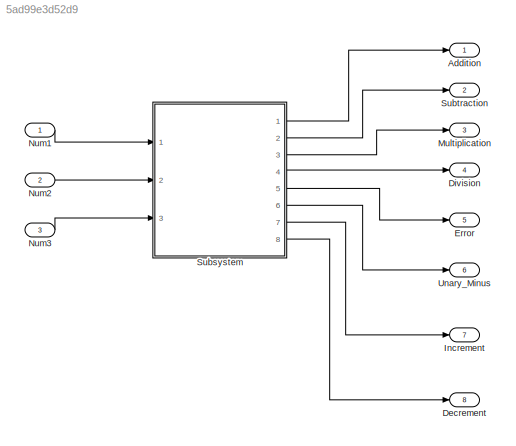
MODEL slx_5ad99e3d52d9
KIND model
CONFIG AbsTol = auto
CONFIG EnableMultiTasking = off
CONFIG FixedStep = auto
CONFIG MaxStep = auto
CONFIG MinStep = auto
CONFIG RelTol = 1e-3
CONFIG SampleTimeConstraint = Unconstrained
CONFIG SolverName = VariableStepAuto
CONFIG StartTime = 0.0
CONFIG StopTime = 10.0
BLOCK [Outport] Addition
BLOCK [Outport] Decrement
  Port = 8
BLOCK [Outport] Division
  Port = 4
BLOCK [Outport] Error
  Port = 5
BLOCK [Outport] Increment
  Port = 7
BLOCK [Outport] Multiplication
  Port = 3
BLOCK [Inport] Num1
BLOCK [Inport] Num2
  Port = 2
BLOCK [Inport] Num3
  Port = 3
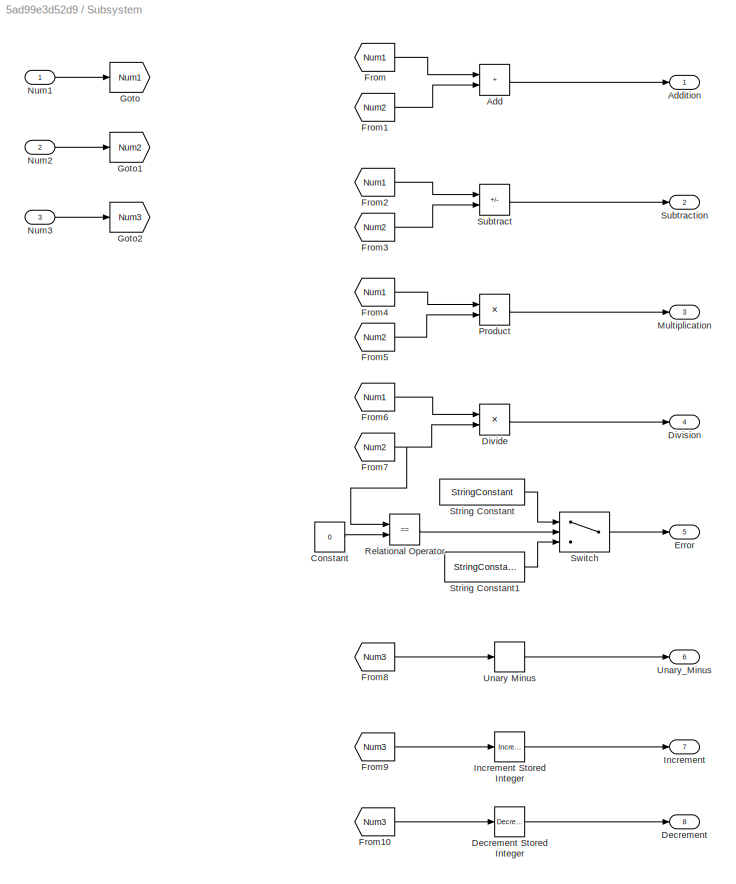
BLOCK [SubSystem] Subsystem
  Ports = [3, 8]
  RequestExecContextInheritance = off
BLOCK [Sum] Subsystem/Add
  IconShape = rectangular
  Ports = [2, 1]
BLOCK [Outport] Subsystem/Addition
BLOCK [Constant] Subsystem/Constant
  Value = 0
BLOCK [Outport] Subsystem/Decrement
  Port = 8
BLOCK [Reference] Subsystem/Decrement Stored Integer  REF=simulink/Additional Math
& Discrete/Additional Math:
Increment - Decrement/Decrement
Stored Integer
  Ports = [1, 1]
  SourceBlock = simulink/Additional Math\n& Discrete/Additional Math:\nIncrement - Decrement/Decrement\nStored Integer
  SourceProductBaseCode = SL
  SourceType = Stored Integer Value Decrement
BLOCK [Product] Subsystem/Divide
  Inputs = */
  Ports = [2, 1]
BLOCK [Outport] Subsystem/Division
  Port = 4
BLOCK [Outport] Subsystem/Error
  Port = 5
BLOCK [From] Subsystem/From
  GotoTag = Num1
BLOCK [From] Subsystem/From1
  GotoTag = Num2
BLOCK [From] Subsystem/From10
  GotoTag = Num3
BLOCK [From] Subsystem/From2
  GotoTag = Num1
BLOCK [From] Subsystem/From3
  GotoTag = Num2
BLOCK [From] Subsystem/From4
  GotoTag = Num1
BLOCK [From] Subsystem/From5
  GotoTag = Num2
BLOCK [From] Subsystem/From6
  GotoTag = Num1
BLOCK [From] Subsystem/From7
  GotoTag = Num2
BLOCK [From] Subsystem/From8
  GotoTag = Num3
BLOCK [From] Subsystem/From9
  GotoTag = Num3
BLOCK [Goto] Subsystem/Goto
  GotoTag = Num1
BLOCK [Goto] Subsystem/Goto1
  GotoTag = Num2
BLOCK [Goto] Subsystem/Goto2
  GotoTag = Num3
BLOCK [Outport] Subsystem/Increment
  Port = 7
BLOCK [Reference] Subsystem/Increment Stored Integer  REF=simulink/Additional Math
& Discrete/Additional Math:
Increment - Decrement/Increment
Stored Integer
  Ports = [1, 1]
  SourceBlock = simulink/Additional Math\n& Discrete/Additional Math:\nIncrement - Decrement/Increment\nStored Integer
  SourceProductBaseCode = SL
  SourceType = Stored Integer Value Increment
BLOCK [Outport] Subsystem/Multiplication
  Port = 3
BLOCK [Inport] Subsystem/Num1
BLOCK [Inport] Subsystem/Num2
  Port = 2
BLOCK [Inport] Subsystem/Num3
  Port = 3
BLOCK [Product] Subsystem/Product
  Ports = [2, 1]
BLOCK [RelationalOperator] Subsystem/Relational Operator
  InputSameDT = off
  Operator = ==
  OutDataTypeStr = boolean
  Ports = [2, 1]
  RndMeth = Simplest
BLOCK [StringConstant] Subsystem/String Constant
  String = "Error"
BLOCK [StringConstant] Subsystem/String Constant1
  String = "No Error"
BLOCK [Sum] Subsystem/Subtract
  IconShape = rectangular
  Inputs = +-
  Ports = [2, 1]
BLOCK [Outport] Subsystem/Subtraction
  Port = 2
BLOCK [Switch] Subsystem/Switch
  Criteria = u2 > Threshold
  InputSameDT = off
  SaturateOnIntegerOverflow = off
BLOCK [UnaryMinus] Subsystem/Unary Minus
BLOCK [Outport] Subsystem/Unary_Minus
  Port = 6
BLOCK [Outport] Subtraction
  Port = 2
BLOCK [Outport] Unary_Minus
  Port = 6
LINE Num1:1 -> Subsystem:1
LINE Num2:1 -> Subsystem:2
LINE Num3:1 -> Subsystem:3
LINE Subsystem/Add:1 -> Subsystem/Addition:1
LINE Subsystem/Constant:1 -> Subsystem/Relational Operator:2
LINE Subsystem/Decrement Stored Integer:1 -> Subsystem/Decrement:1
LINE Subsystem/Divide:1 -> Subsystem/Division:1
LINE Subsystem/From10:1 -> Subsystem/Decrement Stored Integer:1
LINE Subsystem/From1:1 -> Subsystem/Add:2
LINE Subsystem/From2:1 -> Subsystem/Subtract:1
LINE Subsystem/From3:1 -> Subsystem/Subtract:2
LINE Subsystem/From4:1 -> Subsystem/Product:1
LINE Subsystem/From5:1 -> Subsystem/Product:2
LINE Subsystem/From6:1 -> Subsystem/Divide:1
NET Subsystem/From7:1 -> Subsystem/Divide:2, Subsystem/Relational Operator:1
LINE Subsystem/From8:1 -> Subsystem/Unary Minus:1
LINE Subsystem/From9:1 -> Subsystem/Increment Stored Integer:1
LINE Subsystem/From:1 -> Subsystem/Add:1
LINE Subsystem/Increment Stored Integer:1 -> Subsystem/Increment:1
LINE Subsystem/Num1:1 -> Subsystem/Goto:1
LINE Subsystem/Num2:1 -> Subsystem/Goto1:1
LINE Subsystem/Num3:1 -> Subsystem/Goto2:1
LINE Subsystem/Product:1 -> Subsystem/Multiplication:1
LINE Subsystem/Relational Operator:1 -> Subsystem/Switch:2
LINE Subsystem/String Constant1:1 -> Subsystem/Switch:3
LINE Subsystem/String Constant:1 -> Subsystem/Switch:1
LINE Subsystem/Subtract:1 -> Subsystem/Subtraction:1
LINE Subsystem/Switch:1 -> Subsystem/Error:1
LINE Subsystem/Unary Minus:1 -> Subsystem/Unary_Minus:1
LINE Subsystem:1 -> Addition:1
LINE Subsystem:2 -> Subtraction:1
LINE Subsystem:3 -> Multiplication:1
LINE Subsystem:4 -> Division:1
LINE Subsystem:5 -> Error:1
LINE Subsystem:6 -> Unary_Minus:1
LINE Subsystem:7 -> Increment:1
LINE Subsystem:8 -> Decrement:1
note: NET lines group one-source signal fan-out (src -> all destinations, sorted); 1:1 wires keep LINE
